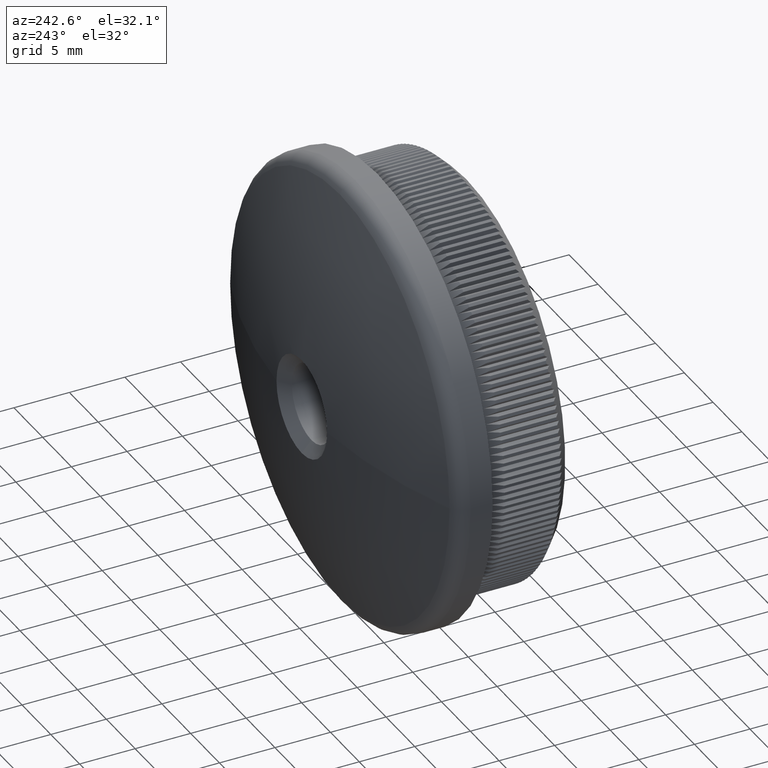
[diagram: clean part render]
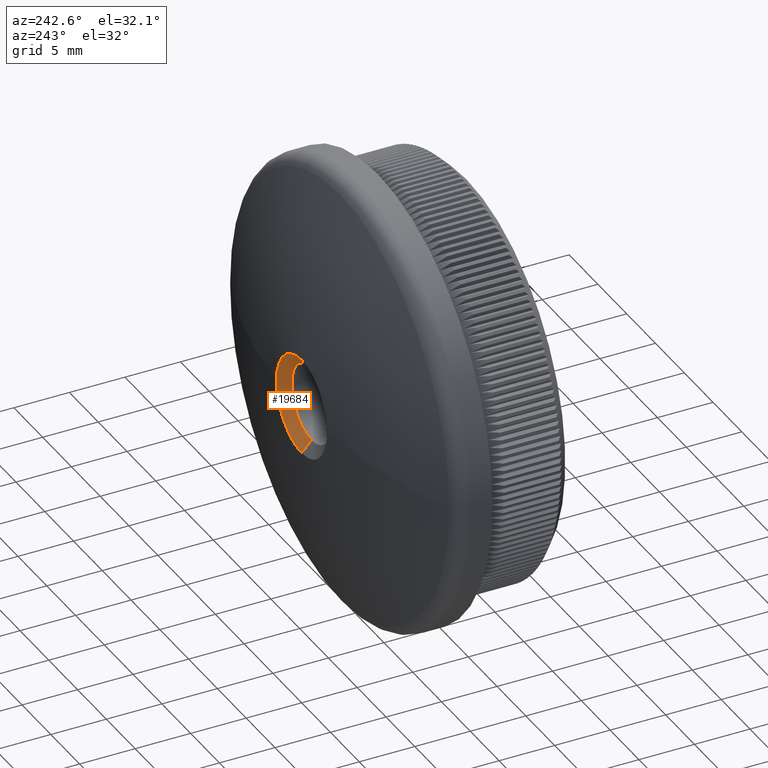
[diagram: same view with one face highlighted and labeled with its STEP entity id]
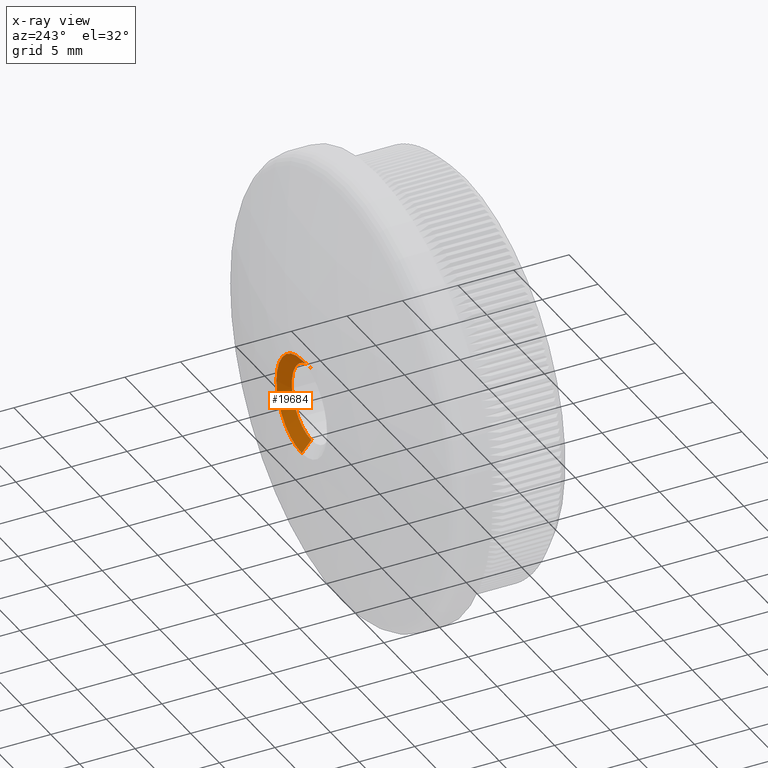
[diagram: x-ray of the same camera — body ghosted, the highlighted face saturated]
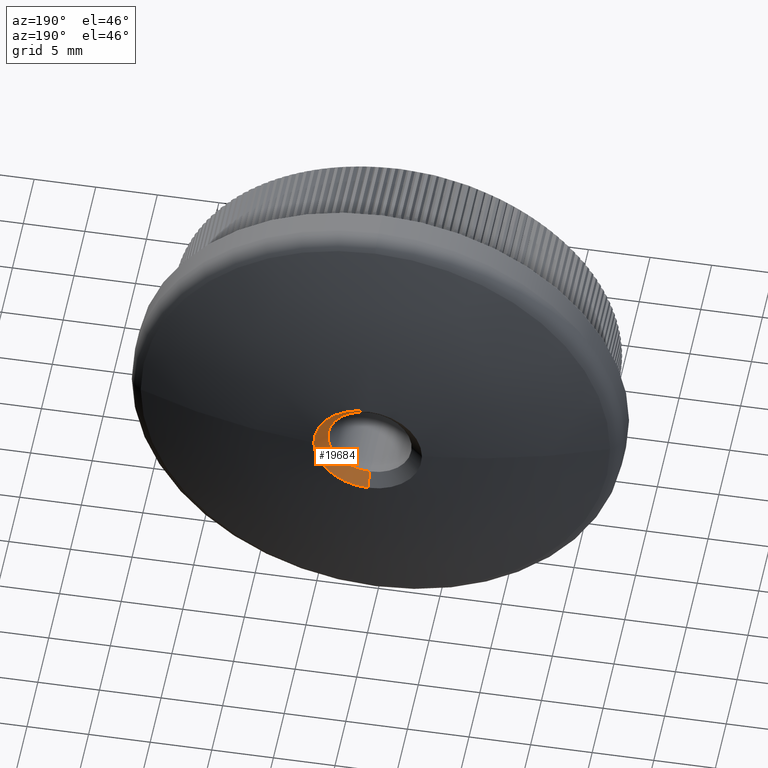
[diagram: same view with one face highlighted and labeled with its STEP entity id]
A machine part, auxiliary view. The second image highlights one B-rep face of the part: STEP entity #19684.
The next image is the same camera in x-ray: the body ghosted, the highlighted face saturated — about 0% of this face is hidden behind the body in this view.
A second angle (auxiliary view) of the same face is appended — the face is thin or edge-on in the first view.
In plain terms, the highlighted conical surface has half-angle 48.749 deg.
Its self-contained STEP definition (entity closure, byte-faithful):
#85 = LINE ( 'NONE', #8058, #23128 ) ;
#294 = CARTESIAN_POINT ( 'NONE',  ( 5.373539196490378800E-016, 14.81454397876859400, -4.387827739583074500 ) ) ;
#976 = FACE_OUTER_BOUND ( 'NONE', #2253, .T. ) ;
#1384 = VERTEX_POINT ( 'NONE', #4297 ) ;
#1646 = CONICAL_SURFACE ( 'NONE', #5829, 3.399999999999995500, 0.8508294567883724100 ) ;
#1673 = DIRECTION ( 'NONE',  ( 0.0000000000000000000, 0.0000000000000000000, -1.000000000000000000 ) ) ;
#2086 = CARTESIAN_POINT ( 'NONE',  ( 4.163799117100995600E-016, 13.94820987779079500, 3.399999999999995500 ) ) ;
#2253 = EDGE_LOOP ( 'NONE', ( #16061, #11030, #15934, #6190, #4400 ) ) ;
#3635 = VERTEX_POINT ( 'NONE', #4829 ) ;
#3641 = VERTEX_POINT ( 'NONE', #294 ) ;
#3848 = DIRECTION ( 'NONE',  ( -0.0000000000000000000, -1.000000000000000000, -0.0000000000000000000 ) ) ;
#4297 = CARTESIAN_POINT ( 'NONE',  ( 0.0000000000000000000, 13.94820987779079500, -3.399999999999995500 ) ) ;
#4400 = ORIENTED_EDGE ( 'NONE', *, *, #27616, .F. ) ;
#4601 = EDGE_CURVE ( 'NONE', #12978, #1384, #14357, .T. ) ;
#4829 = CARTESIAN_POINT ( 'NONE',  ( 4.387827739583083400, 14.81454397876859400, 0.0000000000000000000 ) ) ;
#5718 = CARTESIAN_POINT ( 'NONE',  ( 0.0000000000000000000, 14.81454397876859400, 0.0000000000000000000 ) ) ;
#5743 = AXIS2_PLACEMENT_3D ( 'NONE', #27522, #3848, #1673 ) ;
#5829 = AXIS2_PLACEMENT_3D ( 'NONE', #10286, #19897, #17598 ) ;
#6190 = ORIENTED_EDGE ( 'NONE', *, *, #12885, .F. ) ;
#7135 = CARTESIAN_POINT ( 'NONE',  ( 0.0000000000000000000, 13.94820987779079500, 0.0000000000000000000 ) ) ;
#7327 = EDGE_CURVE ( 'NONE', #12978, #18406, #85, .T. ) ;
#8012 = DIRECTION ( 'NONE',  ( 0.0000000000000000000, 0.0000000000000000000, -1.000000000000000000 ) ) ;
#8058 = CARTESIAN_POINT ( 'NONE',  ( 0.0000000000000000000, 13.94820987779079500, 3.399999999999995500 ) ) ;
#8280 = VECTOR ( 'NONE', #9672, 1000.000000000000000 ) ;
#9550 = DIRECTION ( 'NONE',  ( 0.0000000000000000000, 1.000000000000000000, 0.0000000000000000000 ) ) ;
#9672 = DIRECTION ( 'NONE',  ( 9.207232321790436900E-017, 0.6593597642907070800, -0.7518275741381818000 ) ) ;
#10286 = CARTESIAN_POINT ( 'NONE',  ( 0.0000000000000000000, 13.94820987779079500, 0.0000000000000000000 ) ) ;
#10886 = LINE ( 'NONE', #26404, #8280 ) ;
#11030 = ORIENTED_EDGE ( 'NONE', *, *, #4601, .F. ) ;
#11943 = DIRECTION ( 'NONE',  ( 0.0000000000000000000, 0.0000000000000000000, 1.000000000000000000 ) ) ;
#12885 = EDGE_CURVE ( 'NONE', #3635, #18406, #25150, .T. ) ;
#12978 = VERTEX_POINT ( 'NONE', #2086 ) ;
#14351 = DIRECTION ( 'NONE',  ( 0.0000000000000000000, 0.6593597642907070800, 0.7518275741381818000 ) ) ;
#14357 = CIRCLE ( 'NONE', #30651, 3.399999999999995500 ) ;
#15934 = ORIENTED_EDGE ( 'NONE', *, *, #7327, .T. ) ;
#16061 = ORIENTED_EDGE ( 'NONE', *, *, #28568, .F. ) ;
#17427 = AXIS2_PLACEMENT_3D ( 'NONE', #5718, #22304, #8012 ) ;
#17598 = DIRECTION ( 'NONE',  ( 0.0000000000000000000, 0.0000000000000000000, 1.000000000000000000 ) ) ;
#18406 = VERTEX_POINT ( 'NONE', #30456 ) ;
#19684 = ADVANCED_FACE ( 'NONE', ( #976 ), #1646, .F. ) ;
#19897 = DIRECTION ( 'NONE',  ( 0.0000000000000000000, 1.000000000000000000, 0.0000000000000000000 ) ) ;
#22304 = DIRECTION ( 'NONE',  ( -0.0000000000000000000, -1.000000000000000000, -0.0000000000000000000 ) ) ;
#23128 = VECTOR ( 'NONE', #14351, 1000.000000000000000 ) ;
#23952 = CIRCLE ( 'NONE', #17427, 4.387827739583083400 ) ;
#25150 = CIRCLE ( 'NONE', #5743, 4.387827739583083400 ) ;
#26404 = CARTESIAN_POINT ( 'NONE',  ( 4.163799117100995600E-016, 13.94820987779079500, -3.399999999999995500 ) ) ;
#27522 = CARTESIAN_POINT ( 'NONE',  ( 0.0000000000000000000, 14.81454397876859400, 0.0000000000000000000 ) ) ;
#27616 = EDGE_CURVE ( 'NONE', #3641, #3635, #23952, .T. ) ;
#28568 = EDGE_CURVE ( 'NONE', #1384, #3641, #10886, .T. ) ;
#30456 = CARTESIAN_POINT ( 'NONE',  ( 0.0000000000000000000, 14.81454397876859400, 4.387827739583074500 ) ) ;
#30651 = AXIS2_PLACEMENT_3D ( 'NONE', #7135, #9550, #11943 ) ;